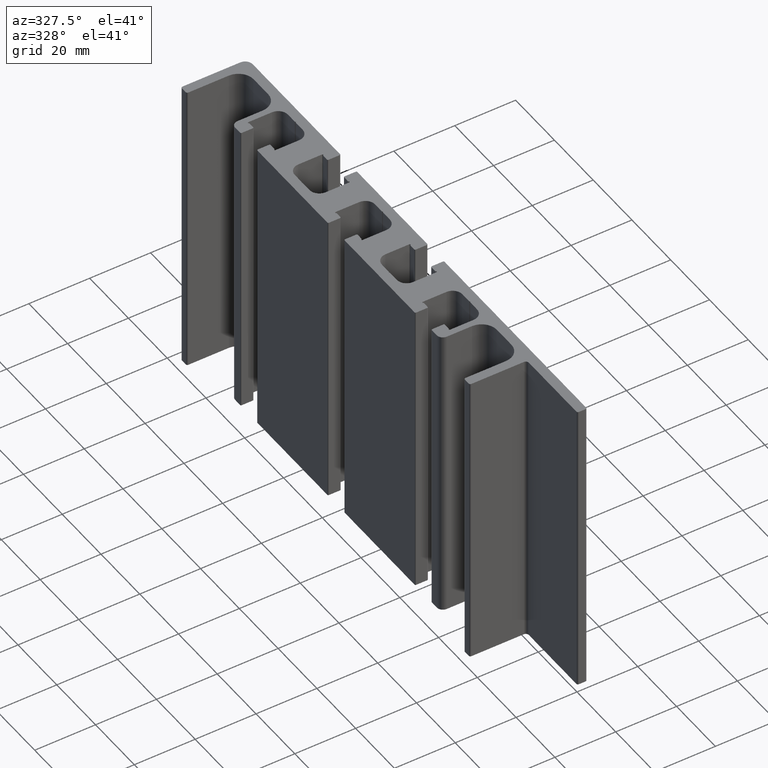
[diagram: clean part render]
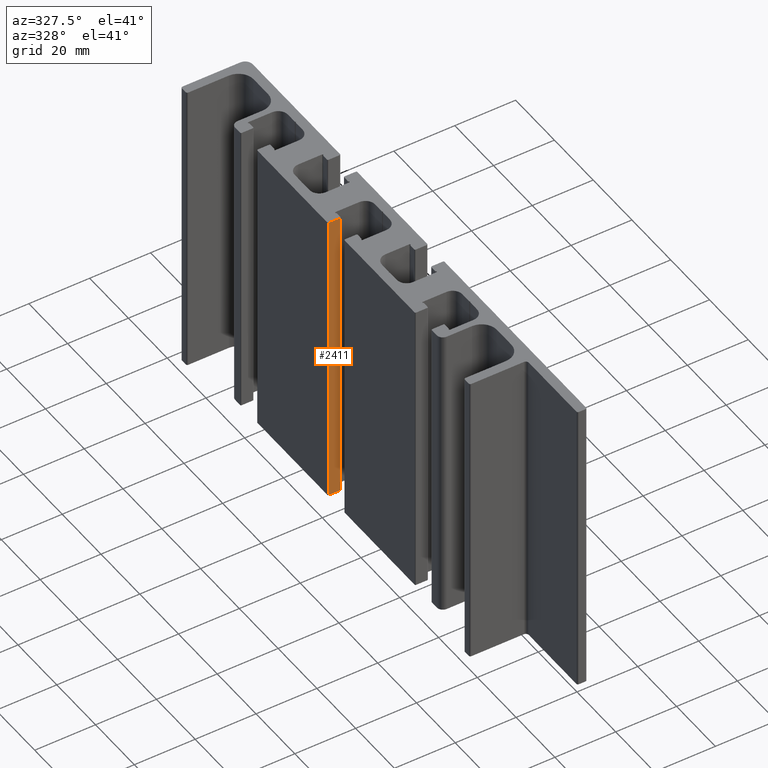
[diagram: same view with one face highlighted and labeled with its STEP entity id]
A machine part, auxiliary view. The second image highlights one B-rep face of the part: STEP entity #2411.
In plain terms, the highlighted planar face has unit normal (-0, -1, 0).
Its self-contained STEP definition (entity closure, byte-faithful):
#215=FACE_OUTER_BOUND('',#340,.T.);
#340=EDGE_LOOP('',(#1716,#1717,#1718,#1719));
#509=LINE('',#3693,#770);
#510=LINE('',#3696,#771);
#511=LINE('',#3698,#772);
#512=LINE('',#3699,#773);
#770=VECTOR('',#2957,100.);
#771=VECTOR('',#2960,3.6999999999999);
#772=VECTOR('',#2961,3.6999999999999);
#773=VECTOR('',#2962,100.);
#1025=VERTEX_POINT('',#3689);
#1026=VERTEX_POINT('',#3691);
#1027=VERTEX_POINT('',#3695);
#1028=VERTEX_POINT('',#3697);
#1309=EDGE_CURVE('',#1025,#1026,#509,.T.);
#1310=EDGE_CURVE('',#1025,#1027,#510,.T.);
#1311=EDGE_CURVE('',#1028,#1026,#511,.T.);
#1312=EDGE_CURVE('',#1027,#1028,#512,.T.);
#1716=ORIENTED_EDGE('',*,*,#1310,.F.);
#1717=ORIENTED_EDGE('',*,*,#1309,.T.);
#1718=ORIENTED_EDGE('',*,*,#1311,.F.);
#1719=ORIENTED_EDGE('',*,*,#1312,.F.);
#2324=PLANE('',#2570);
#2411=ADVANCED_FACE('',(#215),#2324,.T.);
#2570=AXIS2_PLACEMENT_3D('',#3694,#2958,#2959);
#2957=DIRECTION('',(0.,0.,1.));
#2958=DIRECTION('center_axis',(-7.68154308929858E-14,-1.,0.));
#2959=DIRECTION('ref_axis',(1.,-7.68274333040608E-14,0.));
#2960=DIRECTION('',(-1.,7.68154308929858E-14,0.));
#2961=DIRECTION('',(1.,-7.68154308929858E-14,0.));
#2962=DIRECTION('',(0.,0.,1.));
#3689=CARTESIAN_POINT('',(-11.5000000000001,4.14999999999992,0.));
#3691=CARTESIAN_POINT('',(-11.5000000000001,4.14999999999992,100.));
#3693=CARTESIAN_POINT('',(-11.5000000000001,4.14999999999992,0.));
#3694=CARTESIAN_POINT('Origin',(-15.2,4.1500000000002,0.));
#3695=CARTESIAN_POINT('',(-15.2,4.1500000000002,0.));
#3696=CARTESIAN_POINT('',(-11.5000000000001,4.14999999999992,0.));
#3697=CARTESIAN_POINT('',(-15.2,4.1500000000002,100.));
#3698=CARTESIAN_POINT('',(-11.5000000000001,4.14999999999992,100.));
#3699=CARTESIAN_POINT('',(-15.2,4.1500000000002,0.));